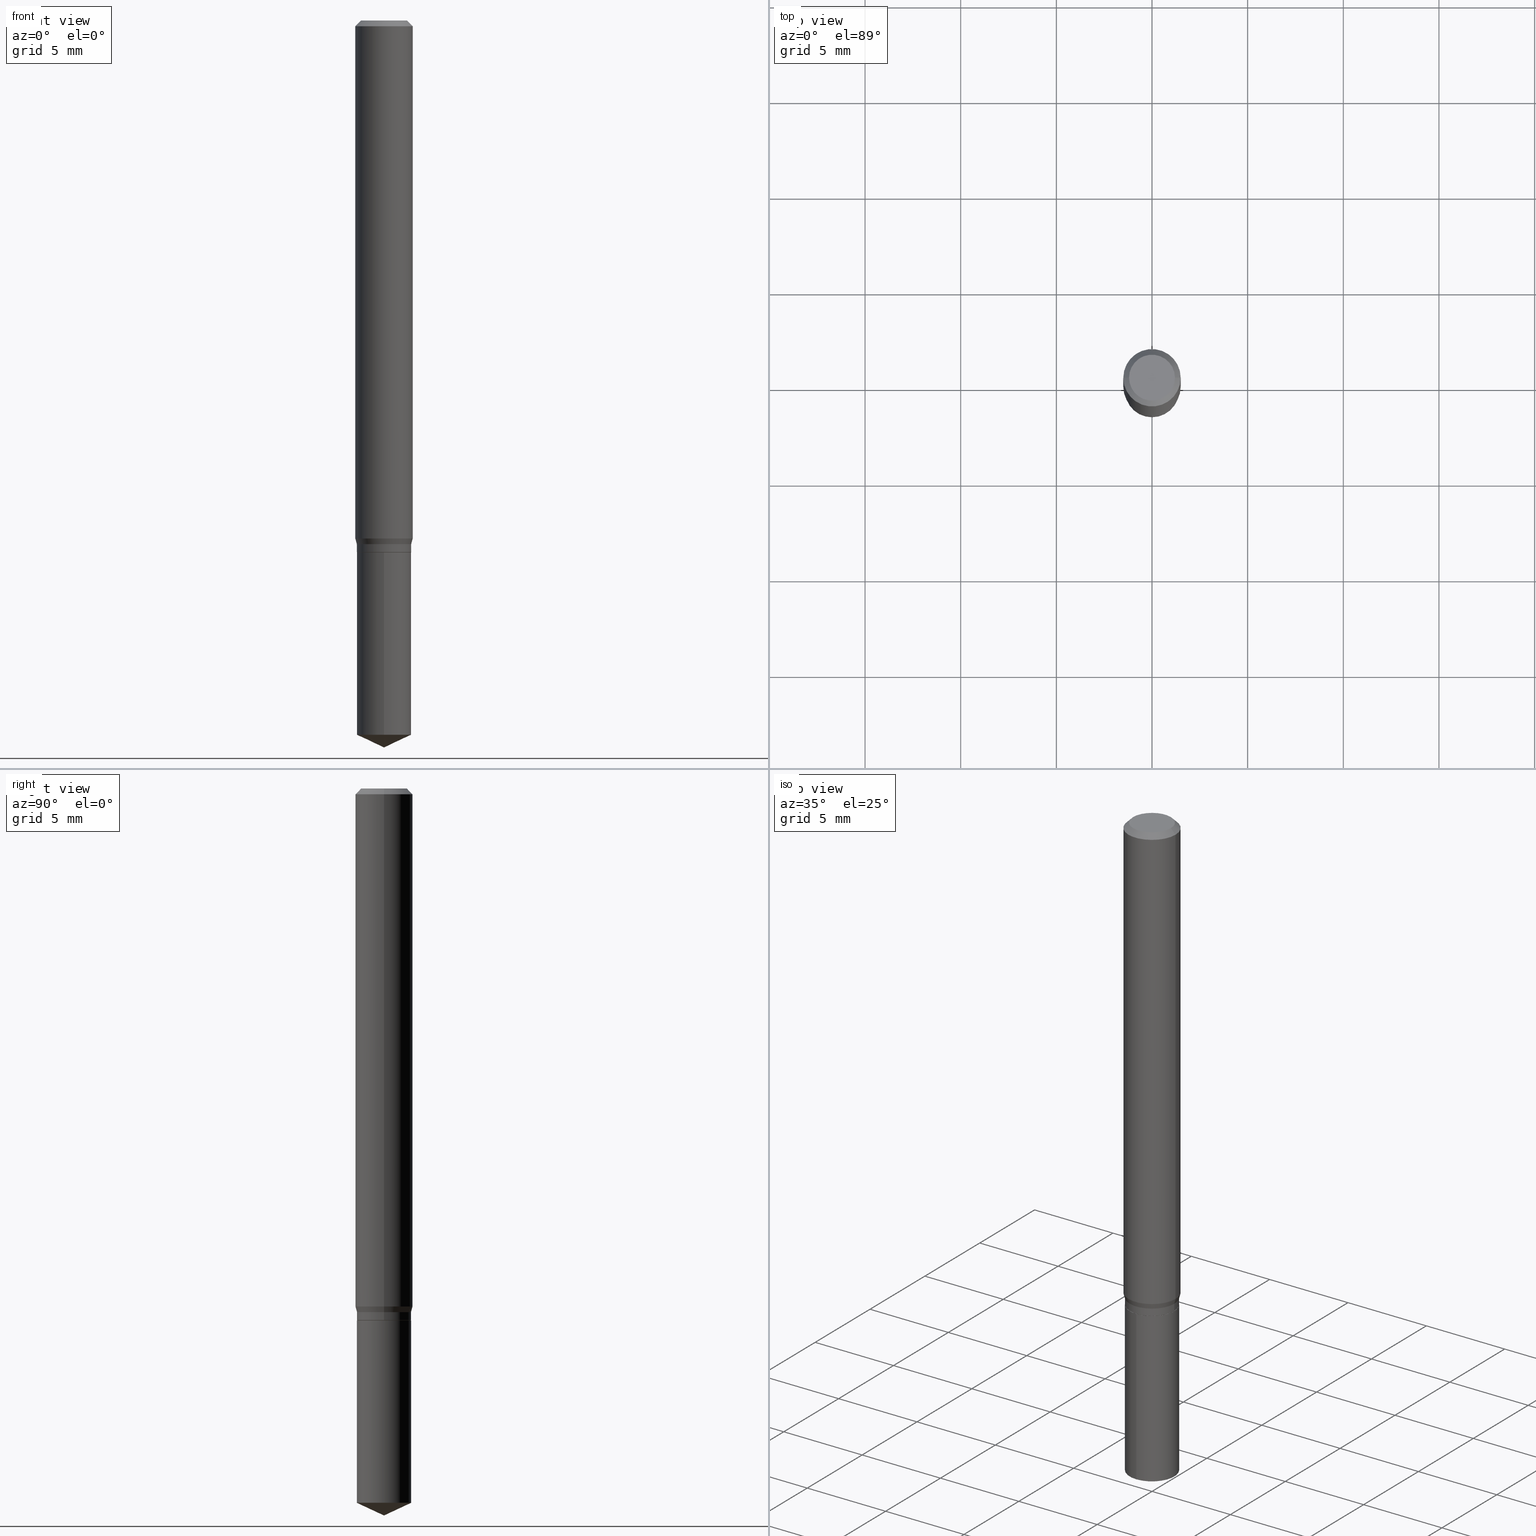
[diagram: canonical four-view strip — front | top / right | iso, engineering-drawing reading convention]
A machine part, canonical four-view strip (front | top / right | iso — engineering-drawing reading convention). The complete STEP part file that produces these views, byte-faithful:
ISO-10303-21;
HEADER;
FILE_DESCRIPTION (( 'STEP AP203' ),
    '1' );
FILE_NAME ('07701.STEP',
    '2024-04-24T01:19:08',
    ( '' ),
    ( '' ),
    'SwSTEP 2.0',
    'SolidWorks 2023',
    '' );
FILE_SCHEMA (( 'CONFIG_CONTROL_DESIGN' ));
ENDSEC;

DATA;
#1 = ORIENTED_EDGE ( 'NONE', *, *, #99, .T. ) ;
#2 = ORIENTED_EDGE ( 'NONE', *, *, #84, .T. ) ;
#3 = DIRECTION ( 'NONE',  ( -2.445468806185136597E-29, 3.491481338843145583E-15, 1.000000000000000000 ) ) ;
#4 = CC_DESIGN_PERSON_AND_ORGANIZATION_ASSIGNMENT ( #238, #209, ( #210 ) ) ;
#5 = CARTESIAN_POINT ( 'NONE',  ( 0.05539999999999999786, -4.208282457707642164E-15, -1.094500000000000028 ) ) ;
#6 = DIRECTION ( 'NONE',  ( 1.000000000000000000, -6.982962677686268288E-15, 0.000000000000000000 ) ) ;
#7 = DIRECTION ( 'NONE',  ( -2.445468806185136597E-29, 3.491481338843145583E-15, 1.000000000000000000 ) ) ;
#8 = AXIS2_PLACEMENT_3D ( 'NONE', #60, #61, #15 ) ;
#9 = CARTESIAN_POINT ( 'NONE',  ( -0.04724000000000000421, 3.504923541997677355E-16, -3.380025165670481712E-19 ) ) ;
#10 = CALENDAR_DATE ( 2024, 23, 4 ) ;
#11 = EDGE_CURVE ( 'NONE', #142, #184, #20, .T. ) ;
#12 = CARTESIAN_POINT ( 'NONE',  ( 7.921692473802966867E-30, -6.519989167480732289E-15, -1.094500000000000028 ) ) ;
#13 = DATE_AND_TIME ( #401, #234 ) ;
#14 = CARTESIAN_POINT ( 'NONE',  ( 2.606732898851746017E-29, -3.721723723757996266E-15, -1.065944039956157496 ) ) ;
#15 = DIRECTION ( 'NONE',  ( -1.000000000000000000, 6.982962677686266711E-15, 0.000000000000000000 ) ) ;
#16 = DATE_AND_TIME ( #56, #198 ) ;
#17 = APPROVAL ( #59, 'UNSPECIFIED' ) ;
#18 = ORIENTED_EDGE ( 'NONE', *, *, #300, .T. ) ;
#19 = VECTOR ( 'NONE', #252, 39.37007874015748854 ) ;
#20 = CIRCLE ( 'NONE', #73, 0.05589999999999999830 ) ;
#21 = CYLINDRICAL_SURFACE ( 'NONE', #396, 0.05589999999999999830 ) ;
#22 = EDGE_CURVE ( 'NONE', #369, #147, #307, .T. ) ;
#23 = DIRECTION ( 'NONE',  ( -6.328713451373378845E-15, -0.9063077870366499367, 0.4226182617406992748 ) ) ;
#24 = CARTESIAN_POINT ( 'NONE',  ( 2.888098660104664204E-31, -4.123439461173780263E-17, -0.01181000000000007218 ) ) ;
#25 = ORIENTED_EDGE ( 'NONE', *, *, #11, .T. ) ;
#26 = VECTOR ( 'NONE', #487, 39.37007874015748143 ) ;
#27 = APPROVAL_PERSON_ORGANIZATION ( #283, #17, #442 ) ;
#28 = EDGE_CURVE ( 'NONE', #485, #29, #135, .T. ) ;
#29 = VERTEX_POINT ( 'NONE', #110 ) ;
#30 = EDGE_LOOP ( 'NONE', ( #87, #374 ) ) ;
#31 = CC_DESIGN_PERSON_AND_ORGANIZATION_ASSIGNMENT ( #322, #438, ( #397 ) ) ;
#32 = CARTESIAN_POINT ( 'NONE',  ( 0.000000000000000000, 0.000000000000000000, 0.000000000000000000 ) ) ;
#33 = PERSON_AND_ORGANIZATION ( #45, #264 ) ;
#34 = EDGE_LOOP ( 'NONE', ( #200, #191, #37, #1 ) ) ;
#35 = AXIS2_PLACEMENT_3D ( 'NONE', #218, #410, #100 ) ;
#36 = CONICAL_SURFACE ( 'NONE', #371, 84.42940631927474726, 1.134464013796317783 ) ;
#37 = ORIENTED_EDGE ( 'NONE', *, *, #176, .T. ) ;
#38 = MANIFOLD_SOLID_BREP ( 'Body-Move/Copy2[1]', #423 ) ;
#39 =( NAMED_UNIT ( * ) PLANE_ANGLE_UNIT ( ) SI_UNIT ( $, .RADIAN. ) );
#40 = EDGE_LOOP ( 'NONE', ( #227, #97, #380 ) ) ;
#41 = ADVANCED_FACE ( 'NONE', ( #265 ), #419, .T. ) ;
#42 = DIRECTION ( 'NONE',  ( 1.000000000000000000, -6.982962677686268288E-15, 0.000000000000000000 ) ) ;
#43 = DATE_AND_TIME ( #82, #255 ) ;
#44 = FACE_OUTER_BOUND ( 'NONE', #379, .T. ) ;
#45 = PERSON ( 'UNSPECIFIED', 'UNSPECIFIED', 'UNSPECIFIED', ('UNSPECIFIED'), ('UNSPECIFIED'), ('UNSPECIFIED') ) ;
#46 = CARTESIAN_POINT ( 'NONE',  ( -0.05904999999999999832, 3.711095515056362547E-16, -0.01181000000000007218 ) ) ;
#47 = APPLICATION_PROTOCOL_DEFINITION ( 'international standard', 'config_control_design', 1994, #242 ) ;
#48 = CARTESIAN_POINT ( 'NONE',  ( -3.903476136826355269E-16, -0.05590000000000382857, -1.094499999999999806 ) ) ;
#49 = AXIS2_PLACEMENT_3D ( 'NONE', #195, #79, #165 ) ;
#50 = CARTESIAN_POINT ( 'NONE',  ( 2.635481732425721400E-29, -3.762769438871257887E-15, -1.077699999999999880 ) ) ;
#51 = EDGE_CURVE ( 'NONE', #156, #343, #213, .T. ) ;
#52 = LOCAL_TIME ( 21, 19, 8.000000000000000000, #439 ) ;
#53 = DIRECTION ( 'NONE',  ( 1.000000000000000000, -6.982962677686266711E-15, 4.876176775795935793E-29 ) ) ;
#54 = FACE_OUTER_BOUND ( 'NONE', #480, .T. ) ;
#55 = SECURITY_CLASSIFICATION_LEVEL ( 'unclassified' ) ;
#56 = CALENDAR_DATE ( 2024, 23, 4 ) ;
#57 = AXIS2_PLACEMENT_3D ( 'NONE', #349, #132, #6 ) ;
#58 = CARTESIAN_POINT ( 'NONE',  ( 2.676565608369632355E-29, -3.821426325363822773E-15, -1.094500000000000028 ) ) ;
#59 = APPROVAL_STATUS ( 'not_yet_approved' ) ;
#60 = CARTESIAN_POINT ( 'NONE',  ( 2.888098660104664204E-31, -4.123439461173780263E-17, -0.01181000000000007218 ) ) ;
#61 = DIRECTION ( 'NONE',  ( 2.445468806185136597E-29, -3.491481338843145583E-15, -1.000000000000000000 ) ) ;
#62 = VERTEX_POINT ( 'NONE', #9 ) ;
#63 = CARTESIAN_POINT ( 'NONE',  ( 0.000000000000000000, 0.000000000000000000, 0.000000000000000000 ) ) ;
#64 = ADVANCED_FACE ( 'NONE', ( #54 ), #90, .T. ) ;
#65 = VECTOR ( 'NONE', #282, 39.37007874015748143 ) ;
#66 = CONICAL_SURFACE ( 'NONE', #272, 0.05589999999999999830, 0.2617993877991506846 ) ;
#67 = CARTESIAN_POINT ( 'NONE',  ( 3.971933892899227145E-16, 0.05589999999999617497, -1.094500000000000028 ) ) ;
#68 = FACE_OUTER_BOUND ( 'NONE', #284, .T. ) ;
#69 = EDGE_LOOP ( 'NONE', ( #25, #453, #339, #216 ) ) ;
#70 = ORIENTED_EDGE ( 'NONE', *, *, #412, .F. ) ;
#71 = DIRECTION ( 'NONE',  ( -2.445468806185136597E-29, 3.491481338843145583E-15, 1.000000000000000000 ) ) ;
#72 = ORIENTED_EDGE ( 'NONE', *, *, #99, .F. ) ;
#73 = AXIS2_PLACEMENT_3D ( 'NONE', #108, #417, #74 ) ;
#74 = DIRECTION ( 'NONE',  ( 1.000000000000000000, -6.982962677686268288E-15, 0.000000000000000000 ) ) ;
#75 = EDGE_LOOP ( 'NONE', ( #476, #452, #189, #152 ) ) ;
#76 = ORIENTED_EDGE ( 'NONE', *, *, #390, .T. ) ;
#77 = ADVANCED_FACE ( 'NONE', ( #157 ), #399, .T. ) ;
#78 = AXIS2_PLACEMENT_3D ( 'NONE', #368, #95, #250 ) ;
#79 = DIRECTION ( 'NONE',  ( -2.445458899330790108E-29, 3.491495526022433205E-15, 1.000000000000000000 ) ) ;
#80 = DIRECTION ( 'NONE',  ( 1.000000000000000000, -6.982962677686266711E-15, 0.000000000000000000 ) ) ;
#81 = DIRECTION ( 'NONE',  ( -6.982962677686266711E-15, -1.000000000000000000, 2.443513411148715109E-15 ) ) ;
#82 = CALENDAR_DATE ( 2024, 23, 4 ) ;
#83 = DIRECTION ( 'NONE',  ( 1.000000000000000000, -6.982962677686266711E-15, 4.876176775795936353E-29 ) ) ;
#84 = EDGE_CURVE ( 'NONE', #142, #232, #199, .T. ) ;
#85 = DIRECTION ( 'NONE',  ( -2.445468806185136597E-29, 3.491481338843145583E-15, 1.000000000000000000 ) ) ;
#86 = DIRECTION ( 'NONE',  ( -6.982962677686267499E-15, -1.000000000000000000, 3.520397390770436909E-15 ) ) ;
#87 = ORIENTED_EDGE ( 'NONE', *, *, #151, .T. ) ;
#88 = CIRCLE ( 'NONE', #448, 0.05904999999999999832 ) ;
#89 = APPROVAL_PERSON_ORGANIZATION ( #460, #94, #388 ) ;
#90 = CYLINDRICAL_SURFACE ( 'NONE', #49, 0.05589999999999999830 ) ;
#91 = PERSON_AND_ORGANIZATION ( #45, #264 ) ;
#92 = LINE ( 'NONE', #46, #334 ) ;
#93 = PRODUCT_DEFINITION_SHAPE ( 'NONE', 'NONE',  #210 ) ;
#94 = APPROVAL ( #115, 'UNSPECIFIED' ) ;
#95 = DIRECTION ( 'NONE',  ( -2.445458899330790108E-29, 3.491495526022433205E-15, 1.000000000000000000 ) ) ;
#96 = AXIS2_PLACEMENT_3D ( 'NONE', #63, #408, #138 ) ;
#97 = ORIENTED_EDGE ( 'NONE', *, *, #329, .T. ) ;
#98 = CARTESIAN_POINT ( 'NONE',  ( 3.658672935554494692E-29, -5.223595400746700193E-15, -1.496099999999999985 ) ) ;
#99 = EDGE_CURVE ( 'NONE', #136, #147, #88, .T. ) ;
#100 = DIRECTION ( 'NONE',  ( 1.000000000000000000, -6.982962677686268288E-15, 0.000000000000000000 ) ) ;
#101 = CC_DESIGN_PERSON_AND_ORGANIZATION_ASSIGNMENT ( #364, #474, ( #296 ) ) ;
#102 = CIRCLE ( 'NONE', #78, 0.05589999999999999830 ) ;
#103 = CARTESIAN_POINT ( 'NONE',  ( 4.132873053354867254E-48, -5.900647395337818946E-34, -1.690012582823346072E-19 ) ) ;
#104 = ORIENTED_EDGE ( 'NONE', *, *, #468, .F. ) ;
#105 = CARTESIAN_POINT ( 'NONE',  ( -3.903476136826355269E-16, -0.05590000000000382857, -1.094499999999999806 ) ) ;
#106 = VERTEX_POINT ( 'NONE', #356 ) ;
#107 = VERTEX_POINT ( 'NONE', #348 ) ;
#108 = CARTESIAN_POINT ( 'NONE',  ( 2.675342873966538993E-29, -3.819680584694400481E-15, -1.093999999999999861 ) ) ;
#109 = CIRCLE ( 'NONE', #241, 0.04724000000000000421 ) ;
#110 = CARTESIAN_POINT ( 'NONE',  ( -0.05539999999999999786, -3.425136422578616035E-15, -1.094500000000000028 ) ) ;
#111 = LENGTH_MEASURE_WITH_UNIT ( LENGTH_MEASURE( 0.02539999999999999897 ), #153 );
#112 = ADVANCED_FACE ( 'NONE', ( #350 ), #233, .T. ) ;
#113 = ORIENTED_EDGE ( 'NONE', *, *, #441, .F. ) ;
#114 = CARTESIAN_POINT ( 'NONE',  ( -0.05904999999999999832, -1.461903573718526716E-15, -0.01181000000000007218 ) ) ;
#115 = APPROVAL_STATUS ( 'not_yet_approved' ) ;
#116 = CONICAL_SURFACE ( 'NONE', #187, 0.05539999999999999786, 0.7853981633972775267 ) ;
#117 = CARTESIAN_POINT ( 'NONE',  ( -0.05589999999999999830, 3.971933892898959918E-16, -2.749684715452492324E-30 ) ) ;
#118 = VECTOR ( 'NONE', #122, 39.37007874015748143 ) ;
#119 = DIRECTION ( 'NONE',  ( -6.982962677686266711E-15, -1.000000000000000000, 4.887026822297430217E-15 ) ) ;
#120 = APPROVAL_DATE_TIME ( #43, #94 ) ;
#121 = EDGE_CURVE ( 'NONE', #29, #485, #361, .T. ) ;
#122 = DIRECTION ( 'NONE',  ( -2.445468806185136877E-29, 3.491481338843145188E-15, 1.000000000000000000 ) ) ;
#123 = FACE_OUTER_BOUND ( 'NONE', #75, .T. ) ;
#124 = DIRECTION ( 'NONE',  ( -2.445458899330790108E-29, 3.491495526022433205E-15, 1.000000000000000000 ) ) ;
#125 = CARTESIAN_POINT ( 'NONE',  ( 2.676565608369632355E-29, -3.821426325363822773E-15, -1.094500000000000028 ) ) ;
#126 = APPROVAL_STATUS ( 'not_yet_approved' ) ;
#127 = AXIS2_PLACEMENT_3D ( 'NONE', #32, #246, #53 ) ;
#128 =( GEOMETRIC_REPRESENTATION_CONTEXT ( 3 ) GLOBAL_UNCERTAINTY_ASSIGNED_CONTEXT ( ( #280 ) ) GLOBAL_UNIT_ASSIGNED_CONTEXT ( ( #231, #39, #381 ) ) REPRESENTATION_CONTEXT ( 'NONE', 'WORKASPACE' ) );
#129 = CARTESIAN_POINT ( 'NONE',  ( 0.05904999999999999832, -4.535783407291118600E-16, -0.01181000000000007218 ) ) ;
#130 = COORDINATED_UNIVERSAL_TIME_OFFSET ( 5, 0, .BEHIND. ) ;
#131 = ADVANCED_FACE ( 'NONE', ( #310 ), #192, .F. ) ;
#132 = DIRECTION ( 'NONE',  ( -2.445468806185136597E-29, 3.491481338843145583E-15, 1.000000000000000000 ) ) ;
#133 = APPROVAL_DATE_TIME ( #16, #17 ) ;
#134 = CARTESIAN_POINT ( 'NONE',  ( 2.635481732425721400E-29, -3.762769438871257887E-15, -1.077699999999999880 ) ) ;
#135 = CIRCLE ( 'NONE', #352, 0.05539999999999999786 ) ;
#136 = VERTEX_POINT ( 'NONE', #114 ) ;
#137 = EDGE_CURVE ( 'NONE', #485, #142, #354, .T. ) ;
#138 = DIRECTION ( 'NONE',  ( 1.000000000000000000, -6.982962677686266711E-15, 4.876176775795935793E-29 ) ) ;
#139 = FACE_OUTER_BOUND ( 'NONE', #145, .T. ) ;
#140 = CARTESIAN_POINT ( 'NONE',  ( -9.261924752013118283E-28, 1.322368428517963298E-13, 37.87397874015748300 ) ) ;
#141 = ORIENTED_EDGE ( 'NONE', *, *, #28, .T. ) ;
#142 = VERTEX_POINT ( 'NONE', #319 ) ;
#143 = AXIS2_PLACEMENT_3D ( 'NONE', #58, #326, #239 ) ;
#144 = LINE ( 'NONE', #169, #178 ) ;
#145 = EDGE_LOOP ( 'NONE', ( #186, #484, #2, #182 ) ) ;
#146 = VERTEX_POINT ( 'NONE', #287 ) ;
#147 = VERTEX_POINT ( 'NONE', #129 ) ;
#148 = DIRECTION ( 'NONE',  ( -2.445468806185136597E-29, 3.491481338843145583E-15, 1.000000000000000000 ) ) ;
#149 = AXIS2_PLACEMENT_3D ( 'NONE', #103, #370, #447 ) ;
#150 = AXIS2_PLACEMENT_3D ( 'NONE', #312, #236, #461 ) ;
#151 = EDGE_CURVE ( 'NONE', #223, #106, #490, .T. ) ;
#152 = ORIENTED_EDGE ( 'NONE', *, *, #367, .F. ) ;
#153 =( LENGTH_UNIT ( ) NAMED_UNIT ( * ) SI_UNIT ( $, .METRE. ) );
#154 = DIRECTION ( 'NONE',  ( -2.445458899330790108E-29, 3.491495526022433205E-15, 1.000000000000000000 ) ) ;
#155 = PERSON_AND_ORGANIZATION_ROLE ( 'design_owner' ) ;
#156 = VERTEX_POINT ( 'NONE', #465 ) ;
#157 = FACE_OUTER_BOUND ( 'NONE', #386, .T. ) ;
#158 = EDGE_LOOP ( 'NONE', ( #141, #267, #219, #301 ) ) ;
#159 = AXIS2_PLACEMENT_3D ( 'NONE', #243, #154, #119 ) ;
#160 = DIRECTION ( 'NONE',  ( 1.000000000000000000, -6.982962677686268288E-15, 0.000000000000000000 ) ) ;
#161 = CONICAL_SURFACE ( 'NONE', #8, 0.05904999999999999832, 0.7853981633974452814 ) ;
#162 = DIRECTION ( 'NONE',  ( 1.000000000000000000, -6.982962677686268288E-15, 0.000000000000000000 ) ) ;
#163 = CARTESIAN_POINT ( 'NONE',  ( 2.676565608369632355E-29, -3.821426325363822773E-15, -1.094500000000000028 ) ) ;
#164 = EDGE_LOOP ( 'NONE', ( #385, #262, #181 ) ) ;
#165 = DIRECTION ( 'NONE',  ( -6.982962677686266711E-15, -1.000000000000000000, 2.443513411148715109E-15 ) ) ;
#166 = EDGE_CURVE ( 'NONE', #29, #184, #466, .T. ) ;
#167 = VECTOR ( 'NONE', #201, 39.37007874015748143 ) ;
#168 = CIRCLE ( 'NONE', #353, 0.05905000000000013016 ) ;
#169 = CARTESIAN_POINT ( 'NONE',  ( -0.05589999999999999830, -3.365576049581361846E-15, -1.077699999999999880 ) ) ;
#170 = CALENDAR_DATE ( 2024, 23, 4 ) ;
#171 = EDGE_CURVE ( 'NONE', #378, #136, #398, .T. ) ;
#172 = AXIS2_PLACEMENT_3D ( 'NONE', #14, #71, #333 ) ;
#173 = CARTESIAN_POINT ( 'NONE',  ( 0.05589999999999999830, -4.153117052553920284E-15, -1.077699999999999880 ) ) ;
#174 = CARTESIAN_POINT ( 'NONE',  ( 3.658651059288795076E-29, -5.223626456482161457E-15, -1.496099999999999985 ) ) ;
#175 = DIRECTION ( 'NONE',  ( -2.445458899330790108E-29, 3.491495526022433205E-15, 1.000000000000000000 ) ) ;
#176 = EDGE_CURVE ( 'NONE', #62, #136, #92, .T. ) ;
#177 = EDGE_LOOP ( 'NONE', ( #221, #411 ) ) ;
#178 = VECTOR ( 'NONE', #298, 39.37007874015748143 ) ;
#179 = ORIENTED_EDGE ( 'NONE', *, *, #256, .T. ) ;
#180 = LOCAL_TIME ( 21, 19, 8.000000000000000000, #395 ) ;
#181 = ORIENTED_EDGE ( 'NONE', *, *, #390, .F. ) ;
#182 = ORIENTED_EDGE ( 'NONE', *, *, #202, .F. ) ;
#183 = ADVANCED_FACE ( 'NONE', ( #123 ), #116, .T. ) ;
#184 = VERTEX_POINT ( 'NONE', #430 ) ;
#185 = FACE_OUTER_BOUND ( 'NONE', #40, .T. ) ;
#186 = ORIENTED_EDGE ( 'NONE', *, *, #437, .F. ) ;
#187 = AXIS2_PLACEMENT_3D ( 'NONE', #125, #7, #162 ) ;
#188 = CC_DESIGN_PERSON_AND_ORGANIZATION_ASSIGNMENT ( #91, #355, ( #296 ) ) ;
#189 = ORIENTED_EDGE ( 'NONE', *, *, #137, .T. ) ;
#190 = DIRECTION ( 'NONE',  ( 1.000000000000000000, 0.000000000000000000, 0.000000000000000000 ) ) ;
#191 = ORIENTED_EDGE ( 'NONE', *, *, #270, .F. ) ;
#192 = PLANE ( 'NONE',  #207 ) ;
#193 = CARTESIAN_POINT ( 'NONE',  ( 2.606732898851746017E-29, -3.721723723757996266E-15, -1.065944039956157496 ) ) ;
#194 = PLANE ( 'NONE',  #150 ) ;
#195 = CARTESIAN_POINT ( 'NONE',  ( 2.676565608369631794E-29, -3.821426325363822773E-15, -1.094499999999999806 ) ) ;
#196 = CARTESIAN_POINT ( 'NONE',  ( 0.05539999999999999786, -4.208282457707642164E-15, -1.094500000000000028 ) ) ;
#197 = CIRCLE ( 'NONE', #305, 0.05589999999999999830 ) ;
#198 = LOCAL_TIME ( 21, 19, 8.000000000000000000, #357 ) ;
#199 = LINE ( 'NONE', #387, #167 ) ;
#200 = ORIENTED_EDGE ( 'NONE', *, *, #22, .F. ) ;
#201 = DIRECTION ( 'NONE',  ( -2.445468806185136877E-29, 3.491481338843145188E-15, 1.000000000000000000 ) ) ;
#202 = EDGE_CURVE ( 'NONE', #260, #232, #197, .T. ) ;
#203 = APPLICATION_CONTEXT ( 'configuration controlled 3d designs of mechanical parts and assemblies' ) ;
#204 = FACE_OUTER_BOUND ( 'NONE', #434, .T. ) ;
#205 = APPROVAL_ROLE ( '' ) ;
#206 = DIRECTION ( 'NONE',  ( -2.445458899330790108E-29, 3.491495526022433599E-15, 1.000000000000000000 ) ) ;
#207 = AXIS2_PLACEMENT_3D ( 'NONE', #12, #313, #459 ) ;
#208 = CC_DESIGN_SECURITY_CLASSIFICATION ( #397, ( #296 ) ) ;
#209 = PERSON_AND_ORGANIZATION_ROLE ( 'creator' ) ;
#210 = PRODUCT_DEFINITION ( 'UNKNOWN', '', #296, #302 ) ;
#211 = FACE_OUTER_BOUND ( 'NONE', #34, .T. ) ;
#212 = LINE ( 'NONE', #67, #254 ) ;
#213 = CIRCLE ( 'NONE', #159, 0.05589999999999999830 ) ;
#214 = APPROVAL_PERSON_ORGANIZATION ( #327, #489, #205 ) ;
#215 = LINE ( 'NONE', #174, #376 ) ;
#216 = ORIENTED_EDGE ( 'NONE', *, *, #84, .F. ) ;
#217 = ADVANCED_FACE ( 'NONE', ( #204 ), #21, .T. ) ;
#218 = CARTESIAN_POINT ( 'NONE',  ( 2.635481732425721400E-29, -3.762769438871257887E-15, -1.077699999999999880 ) ) ;
#219 = ORIENTED_EDGE ( 'NONE', *, *, #11, .F. ) ;
#220 = DIRECTION ( 'NONE',  ( -2.445468806185136597E-29, 3.491481338843145583E-15, 1.000000000000000000 ) ) ;
#221 = ORIENTED_EDGE ( 'NONE', *, *, #270, .T. ) ;
#222 = CIRCLE ( 'NONE', #172, 0.05905000000000013016 ) ;
#223 = VERTEX_POINT ( 'NONE', #105 ) ;
#224 = AXIS2_PLACEMENT_3D ( 'NONE', #464, #429, #83 ) ;
#225 = EDGE_CURVE ( 'NONE', #146, #147, #259, .T. ) ;
#226 = CARTESIAN_POINT ( 'NONE',  ( 0.05904999999999999832, -4.463468013801466955E-16, -0.01181000000000007218 ) ) ;
#227 = ORIENTED_EDGE ( 'NONE', *, *, #309, .F. ) ;
#228 = ORIENTED_EDGE ( 'NONE', *, *, #479, .F. ) ;
#229 = ORIENTED_EDGE ( 'NONE', *, *, #151, .F. ) ;
#230 = ORIENTED_EDGE ( 'NONE', *, *, #244, .F. ) ;
#231 =( CONVERSION_BASED_UNIT ( 'INCH', #111 ) LENGTH_UNIT ( ) NAMED_UNIT ( #290 ) );
#232 = VERTEX_POINT ( 'NONE', #173 ) ;
#233 = CONICAL_SURFACE ( 'NONE', #407, 0.05589999999999999830, 0.2617993877991506846 ) ;
#234 = LOCAL_TIME ( 21, 19, 8.000000000000000000, #130 ) ;
#235 = CARTESIAN_POINT ( 'NONE',  ( 0.000000000000000000, 0.000000000000000000, 0.000000000000000000 ) ) ;
#236 = DIRECTION ( 'NONE',  ( 2.445458899330789267E-29, -3.491495526022433599E-15, -1.000000000000000000 ) ) ;
#237 = CARTESIAN_POINT ( 'NONE',  ( -0.05539999999999999786, -3.427785649752727631E-15, -1.094500000000000028 ) ) ;
#238 = PERSON_AND_ORGANIZATION ( #45, #264 ) ;
#239 = DIRECTION ( 'NONE',  ( 1.000000000000000000, -6.982962677686268288E-15, 0.000000000000000000 ) ) ;
#240 = DIRECTION ( 'NONE',  ( 1.000000000000000000, -6.982962677686268288E-15, 0.000000000000000000 ) ) ;
#241 = AXIS2_PLACEMENT_3D ( 'NONE', #413, #482, #330 ) ;
#242 = APPLICATION_CONTEXT ( 'configuration controlled 3d designs of mechanical parts and assemblies' ) ;
#243 = CARTESIAN_POINT ( 'NONE',  ( 3.594917108064294663E-29, -5.132599518001554122E-15, -1.470033401909135673 ) ) ;
#244 = EDGE_CURVE ( 'NONE', #369, #62, #109, .T. ) ;
#245 = SHAPE_DEFINITION_REPRESENTATION ( #93, #308 ) ;
#246 = DIRECTION ( 'NONE',  ( -2.445468806185136597E-29, 3.491481338843145583E-15, 1.000000000000000000 ) ) ;
#247 = LINE ( 'NONE', #117, #118 ) ;
#248 = AXIS2_PLACEMENT_3D ( 'NONE', #421, #431, #86 ) ;
#249 = DATE_AND_TIME ( #170, #52 ) ;
#250 = DIRECTION ( 'NONE',  ( -6.982962677686266711E-15, -1.000000000000000000, 4.887026822297430217E-15 ) ) ;
#251 = ORIENTED_EDGE ( 'NONE', *, *, #412, .T. ) ;
#252 = DIRECTION ( 'NONE',  ( 6.439704144417034297E-15, 0.9063077870366528233, 0.4226182617406930020 ) ) ;
#253 = DIRECTION ( 'NONE',  ( -6.982962677686266711E-15, -1.000000000000000000, 2.443513411148715109E-15 ) ) ;
#254 = VECTOR ( 'NONE', #292, 39.37007874015748143 ) ;
#255 = LOCAL_TIME ( 21, 19, 8.000000000000000000, #314 ) ;
#256 = EDGE_CURVE ( 'NONE', #378, #146, #222, .T. ) ;
#257 = DIRECTION ( 'NONE',  ( 2.445468806185136597E-29, -3.491481338843145583E-15, -1.000000000000000000 ) ) ;
#258 = ORIENTED_EDGE ( 'NONE', *, *, #176, .F. ) ;
#259 = LINE ( 'NONE', #375, #402 ) ;
#260 = VERTEX_POINT ( 'NONE', #477 ) ;
#261 = EDGE_CURVE ( 'NONE', #260, #378, #144, .T. ) ;
#262 = ORIENTED_EDGE ( 'NONE', *, *, #309, .T. ) ;
#263 = ORIENTED_EDGE ( 'NONE', *, *, #455, .F. ) ;
#264 = ORGANIZATION ( 'UNSPECIFIED', 'UNSPECIFIED', '' ) ;
#265 = FACE_OUTER_BOUND ( 'NONE', #69, .T. ) ;
#266 = ORIENTED_EDGE ( 'NONE', *, *, #479, .T. ) ;
#267 = ORIENTED_EDGE ( 'NONE', *, *, #166, .T. ) ;
#268 = DIRECTION ( 'NONE',  ( -6.982962677686266711E-15, -1.000000000000000000, 2.443513411148715109E-15 ) ) ;
#269 = CARTESIAN_POINT ( 'NONE',  ( 2.888098660104664204E-31, -4.123439461173780263E-17, -0.01181000000000007218 ) ) ;
#270 = EDGE_CURVE ( 'NONE', #62, #369, #462, .T. ) ;
#271 = CLOSED_SHELL ( 'NONE', ( #400, #281, #450, #112, #41, #294, #405, #77, #363, #318, #131, #183 ) ) ;
#272 = AXIS2_PLACEMENT_3D ( 'NONE', #134, #365, #160 ) ;
#273 = DIRECTION ( 'NONE',  ( -2.445468806185136597E-29, 3.491481338843145583E-15, 1.000000000000000000 ) ) ;
#274 = DIRECTION ( 'NONE',  ( -2.445468806185136597E-29, 3.491481338843145583E-15, 1.000000000000000000 ) ) ;
#275 = DIRECTION ( 'NONE',  ( -2.445468806185136597E-29, 3.491481338843145583E-15, 1.000000000000000000 ) ) ;
#276 = CARTESIAN_POINT ( 'NONE',  ( 2.888098660104664204E-31, -4.123439461173780263E-17, -0.01181000000000007218 ) ) ;
#277 = DIRECTION ( 'NONE',  ( -0.7071067811864267805, 7.493145998869918709E-15, 0.7071067811866682540 ) ) ;
#278 = DIRECTION ( 'NONE',  ( 1.000000000000000000, -6.982962677686265133E-15, 0.000000000000000000 ) ) ;
#279 = ORIENTED_EDGE ( 'NONE', *, *, #28, .F. ) ;
#280 = UNCERTAINTY_MEASURE_WITH_UNIT (LENGTH_MEASURE( 1.000000000000000082E-05 ), #231, 'distance_accuracy_value', 'NONE');
#281 = ADVANCED_FACE ( 'NONE', ( #68 ), #456, .T. ) ;
#282 = DIRECTION ( 'NONE',  ( -2.445468806185136877E-29, 3.491481338843145188E-15, 1.000000000000000000 ) ) ;
#283 = PERSON_AND_ORGANIZATION ( #45, #264 ) ;
#284 = EDGE_LOOP ( 'NONE', ( #230, #458, #428, #258 ) ) ;
#285 = AXIS2_PLACEMENT_3D ( 'NONE', #235, #321, #469 ) ;
#286 = CC_DESIGN_APPROVAL ( #17, ( #296 ) ) ;
#287 = CARTESIAN_POINT ( 'NONE',  ( 0.05905000000000013016, -4.134067669875371975E-15, -1.065944039956157496 ) ) ;
#288 = DATE_TIME_ROLE ( 'classification_date' ) ;
#289 = CARTESIAN_POINT ( 'NONE',  ( -0.05905000000000013016, -3.302148238291656773E-15, -1.065944039956157496 ) ) ;
#290 = DIMENSIONAL_EXPONENTS ( 1.000000000000000000, 0.000000000000000000, 0.000000000000000000, 0.000000000000000000, 0.000000000000000000, 0.000000000000000000, 0.000000000000000000 ) ;
#291 = LINE ( 'NONE', #440, #335 ) ;
#292 = DIRECTION ( 'NONE',  ( -2.445458899330790108E-29, 3.491495526022433599E-15, 1.000000000000000000 ) ) ;
#293 = FACE_OUTER_BOUND ( 'NONE', #177, .T. ) ;
#294 = ADVANCED_FACE ( 'NONE', ( #139 ), #331, .T. ) ;
#295 = DIRECTION ( 'NONE',  ( -2.445458899330790108E-29, 3.491495526022433205E-15, 1.000000000000000000 ) ) ;
#296 = PRODUCT_DEFINITION_FORMATION_WITH_SPECIFIED_SOURCE ( 'ANY', '', #323, .NOT_KNOWN. ) ;
#297 = ORIENTED_EDGE ( 'NONE', *, *, #256, .F. ) ;
#298 = DIRECTION ( 'NONE',  ( -0.2588190451025219607, 5.211531920934553408E-15, 0.9659258262890679791 ) ) ;
#299 = ORIENTED_EDGE ( 'NONE', *, *, #121, .F. ) ;
#300 = EDGE_CURVE ( 'NONE', #156, #106, #212, .T. ) ;
#301 = ORIENTED_EDGE ( 'NONE', *, *, #137, .F. ) ;
#302 = DESIGN_CONTEXT ( 'detailed design', #203, 'design' ) ;
#303 = VECTOR ( 'NONE', #277, 39.37007874015748143 ) ;
#304 = CARTESIAN_POINT ( 'NONE',  ( 2.676565608369632355E-29, -3.821426325363822773E-15, -1.094500000000000028 ) ) ;
#305 = AXIS2_PLACEMENT_3D ( 'NONE', #317, #85, #240 ) ;
#306 = AXIS2_PLACEMENT_3D ( 'NONE', #360, #124, #268 ) ;
#307 = LINE ( 'NONE', #226, #26 ) ;
#308 = ADVANCED_BREP_SHAPE_REPRESENTATION ( '07701', ( #38, #358, #409 ), #128 ) ;
#309 = EDGE_CURVE ( 'NONE', #107, #156, #445, .T. ) ;
#310 = FACE_OUTER_BOUND ( 'NONE', #420, .T. ) ;
#311 = APPLICATION_PROTOCOL_DEFINITION ( 'international standard', 'config_control_design', 1994, #203 ) ;
#312 = CARTESIAN_POINT ( 'NONE',  ( 2.676565608369631794E-29, -3.821426325363822773E-15, -1.094499999999999806 ) ) ;
#313 = DIRECTION ( 'NONE',  ( -2.438088387897960049E-29, 3.491481338843145188E-15, 1.000000000000000000 ) ) ;
#314 = COORDINATED_UNIVERSAL_TIME_OFFSET ( 5, 0, .BEHIND. ) ;
#315 = VECTOR ( 'NONE', #463, 39.37007874015748143 ) ;
#316 = CYLINDRICAL_SURFACE ( 'NONE', #224, 0.05905000000000006771 ) ;
#317 = CARTESIAN_POINT ( 'NONE',  ( 2.635481732425721400E-29, -3.762769438871257887E-15, -1.077699999999999880 ) ) ;
#318 = ADVANCED_FACE ( 'NONE', ( #293 ), #406, .F. ) ;
#319 = CARTESIAN_POINT ( 'NONE',  ( 0.05589999999999999830, -4.210028198377062878E-15, -1.093999999999999861 ) ) ;
#320 = DATE_AND_TIME ( #10, #180 ) ;
#321 = DIRECTION ( 'NONE',  ( -2.445468806185136597E-29, 3.491481338843145583E-15, 1.000000000000000000 ) ) ;
#322 = PERSON_AND_ORGANIZATION ( #45, #264 ) ;
#323 = PRODUCT ( '07701', '07701', '', ( #427 ) ) ;
#324 = CIRCLE ( 'NONE', #57, 0.05589999999999999830 ) ;
#325 = DIRECTION ( 'NONE',  ( 1.000000000000000000, -6.982962677686266711E-15, 4.876185090822587894E-29 ) ) ;
#326 = DIRECTION ( 'NONE',  ( -2.445468806185136597E-29, 3.491481338843145583E-15, 1.000000000000000000 ) ) ;
#327 = PERSON_AND_ORGANIZATION ( #45, #264 ) ;
#328 = CONICAL_SURFACE ( 'NONE', #143, 0.05539999999999999786, 0.7853981633972775267 ) ;
#329 = EDGE_CURVE ( 'NONE', #107, #343, #215, .T. ) ;
#330 = DIRECTION ( 'NONE',  ( 1.000000000000000000, -6.982962677686266711E-15, 4.876185090822587894E-29 ) ) ;
#331 = CYLINDRICAL_SURFACE ( 'NONE', #96, 0.05589999999999999830 ) ;
#332 = CC_DESIGN_DATE_AND_TIME_ASSIGNMENT ( #13, #288, ( #397 ) ) ;
#333 = DIRECTION ( 'NONE',  ( 1.000000000000000000, -6.982962677686265133E-15, 0.000000000000000000 ) ) ;
#334 = VECTOR ( 'NONE', #432, 39.37007874015748143 ) ;
#335 = VECTOR ( 'NONE', #443, 39.37007874015748143 ) ;
#336 = ORIENTED_EDGE ( 'NONE', *, *, #344, .T. ) ;
#337 = ORIENTED_EDGE ( 'NONE', *, *, #171, .T. ) ;
#338 = PRODUCT_RELATED_PRODUCT_CATEGORY ( 'detail', '', ( #323 ) ) ;
#339 = ORIENTED_EDGE ( 'NONE', *, *, #344, .F. ) ;
#340 = AXIS2_PLACEMENT_3D ( 'NONE', #372, #220, #325 ) ;
#341 = EDGE_LOOP ( 'NONE', ( #336, #444, #228, #70 ) ) ;
#342 = CONICAL_SURFACE ( 'NONE', #248, 84.42940631927474726, 1.134464013796317783 ) ;
#343 = VERTEX_POINT ( 'NONE', #373 ) ;
#344 = EDGE_CURVE ( 'NONE', #232, #260, #433, .T. ) ;
#345 = CC_DESIGN_DATE_AND_TIME_ASSIGNMENT ( #320, #366, ( #210 ) ) ;
#346 = DIRECTION ( 'NONE',  ( -2.445468806185136597E-29, 3.491481338843145583E-15, 1.000000000000000000 ) ) ;
#347 = ORIENTED_EDGE ( 'NONE', *, *, #225, .F. ) ;
#348 = CARTESIAN_POINT ( 'NONE',  ( 3.658651059288794515E-29, -5.223626456482161457E-15, -1.496099999999999985 ) ) ;
#349 = CARTESIAN_POINT ( 'NONE',  ( 2.675342873966538993E-29, -3.819680584694400481E-15, -1.093999999999999861 ) ) ;
#350 = FACE_OUTER_BOUND ( 'NONE', #341, .T. ) ;
#351 = ADVANCED_FACE ( 'NONE', ( #478 ), #36, .T. ) ;
#352 = AXIS2_PLACEMENT_3D ( 'NONE', #304, #148, #457 ) ;
#353 = AXIS2_PLACEMENT_3D ( 'NONE', #193, #275, #278 ) ;
#354 = LINE ( 'NONE', #5, #315 ) ;
#355 = PERSON_AND_ORGANIZATION_ROLE ( 'creator' ) ;
#356 = CARTESIAN_POINT ( 'NONE',  ( 3.971933892899319836E-16, 0.05589999999999617497, -1.094500000000000028 ) ) ;
#357 = COORDINATED_UNIVERSAL_TIME_OFFSET ( 5, 0, .BEHIND. ) ;
#358 = MANIFOLD_SOLID_BREP ( 'Body-Move/Copy2[2]', #271 ) ;
#359 = CARTESIAN_POINT ( 'NONE',  ( 2.676565608369631794E-29, -3.821426325363822773E-15, -1.094499999999999806 ) ) ;
#360 = CARTESIAN_POINT ( 'NONE',  ( 2.676565608369631794E-29, -3.821426325363822773E-15, -1.094499999999999806 ) ) ;
#361 = CIRCLE ( 'NONE', #415, 0.05539999999999999786 ) ;
#362 = CIRCLE ( 'NONE', #377, 0.05904999999999999832 ) ;
#363 = ADVANCED_FACE ( 'NONE', ( #211 ), #161, .T. ) ;
#364 = PERSON_AND_ORGANIZATION ( #45, #264 ) ;
#365 = DIRECTION ( 'NONE',  ( -2.445468806185136597E-29, 3.491481338843145583E-15, 1.000000000000000000 ) ) ;
#366 = DATE_TIME_ROLE ( 'creation_date' ) ;
#367 = EDGE_CURVE ( 'NONE', #184, #142, #324, .T. ) ;
#368 = CARTESIAN_POINT ( 'NONE',  ( 3.594917108064294663E-29, -5.132599518001554122E-15, -1.470033401909135673 ) ) ;
#369 = VERTEX_POINT ( 'NONE', #475 ) ;
#370 = DIRECTION ( 'NONE',  ( 2.438088387897960049E-29, -3.491481338843145188E-15, -1.000000000000000000 ) ) ;
#371 = AXIS2_PLACEMENT_3D ( 'NONE', #140, #295, #449 ) ;
#372 = CARTESIAN_POINT ( 'NONE',  ( 8.265746106709734507E-48, -1.180129479067563789E-33, -3.380025165646692144E-19 ) ) ;
#373 = CARTESIAN_POINT ( 'NONE',  ( -3.903476136826264057E-16, -0.05590000000000514696, -1.470033401909135451 ) ) ;
#374 = ORIENTED_EDGE ( 'NONE', *, *, #468, .T. ) ;
#375 = CARTESIAN_POINT ( 'NONE',  ( 0.05905000000000006771, -4.123439461173745257E-16, 2.879382386107503723E-30 ) ) ;
#376 = VECTOR ( 'NONE', #23, 39.37007874015748854 ) ;
#377 = AXIS2_PLACEMENT_3D ( 'NONE', #276, #273, #80 ) ;
#378 = VERTEX_POINT ( 'NONE', #289 ) ;
#379 = EDGE_LOOP ( 'NONE', ( #471, #454, #251, #297 ) ) ;
#380 = ORIENTED_EDGE ( 'NONE', *, *, #51, .F. ) ;
#381 =( NAMED_UNIT ( * ) SI_UNIT ( $, .STERADIAN. ) SOLID_ANGLE_UNIT ( ) );
#382 = EDGE_LOOP ( 'NONE', ( #266, #337, #113, #347 ) ) ;
#383 = ORIENTED_EDGE ( 'NONE', *, *, #171, .F. ) ;
#384 = CC_DESIGN_PERSON_AND_ORGANIZATION_ASSIGNMENT ( #33, #155, ( #323 ) ) ;
#385 = ORIENTED_EDGE ( 'NONE', *, *, #329, .F. ) ;
#386 = EDGE_LOOP ( 'NONE', ( #383, #179, #446, #72 ) ) ;
#387 = CARTESIAN_POINT ( 'NONE',  ( 0.05589999999999999830, -3.903476136826622989E-16, 2.725782817669928091E-30 ) ) ;
#388 = APPROVAL_ROLE ( '' ) ;
#389 = FACE_OUTER_BOUND ( 'NONE', #382, .T. ) ;
#390 = EDGE_CURVE ( 'NONE', #343, #156, #102, .T. ) ;
#391 = CARTESIAN_POINT ( 'NONE',  ( -0.05905000000000006771, 4.195754854663396409E-16, -2.904631170795525045E-30 ) ) ;
#392 = CARTESIAN_POINT ( 'NONE',  ( 0.000000000000000000, 0.000000000000000000, 0.000000000000000000 ) ) ;
#393 = LINE ( 'NONE', #48, #403 ) ;
#394 = DIRECTION ( 'NONE',  ( 1.000000000000000000, -6.982962677686266711E-15, 0.000000000000000000 ) ) ;
#395 = COORDINATED_UNIVERSAL_TIME_OFFSET ( 5, 0, .BEHIND. ) ;
#396 = AXIS2_PLACEMENT_3D ( 'NONE', #359, #175, #253 ) ;
#397 = SECURITY_CLASSIFICATION ( '', '', #55 ) ;
#398 = LINE ( 'NONE', #391, #65 ) ;
#399 = CYLINDRICAL_SURFACE ( 'NONE', #285, 0.05905000000000006771 ) ;
#400 = ADVANCED_FACE ( 'NONE', ( #404 ), #328, .T. ) ;
#401 = CALENDAR_DATE ( 2024, 23, 4 ) ;
#402 = VECTOR ( 'NONE', #451, 39.37007874015748143 ) ;
#403 = VECTOR ( 'NONE', #206, 39.37007874015748143 ) ;
#404 = FACE_OUTER_BOUND ( 'NONE', #158, .T. ) ;
#405 = ADVANCED_FACE ( 'NONE', ( #44 ), #66, .T. ) ;
#406 = PLANE ( 'NONE',  #149 ) ;
#407 = AXIS2_PLACEMENT_3D ( 'NONE', #50, #346, #42 ) ;
#408 = DIRECTION ( 'NONE',  ( -2.445468806185136597E-29, 3.491481338843145583E-15, 1.000000000000000000 ) ) ;
#409 = AXIS2_PLACEMENT_3D ( 'NONE', #392, #488, #190 ) ;
#410 = DIRECTION ( 'NONE',  ( -2.445468806185136597E-29, 3.491481338843145583E-15, 1.000000000000000000 ) ) ;
#411 = ORIENTED_EDGE ( 'NONE', *, *, #244, .T. ) ;
#412 = EDGE_CURVE ( 'NONE', #232, #146, #291, .T. ) ;
#413 = CARTESIAN_POINT ( 'NONE',  ( 8.265746106709734507E-48, -1.180129479067563789E-33, -3.380025165646692144E-19 ) ) ;
#414 = ORIENTED_EDGE ( 'NONE', *, *, #300, .F. ) ;
#415 = AXIS2_PLACEMENT_3D ( 'NONE', #163, #3, #424 ) ;
#416 = CC_DESIGN_APPROVAL ( #94, ( #210 ) ) ;
#417 = DIRECTION ( 'NONE',  ( -2.445468806185136597E-29, 3.491481338843145583E-15, 1.000000000000000000 ) ) ;
#418 = ADVANCED_FACE ( 'NONE', ( #473 ), #194, .F. ) ;
#419 = CYLINDRICAL_SURFACE ( 'NONE', #127, 0.05589999999999999830 ) ;
#420 = EDGE_LOOP ( 'NONE', ( #279, #299 ) ) ;
#421 = CARTESIAN_POINT ( 'NONE',  ( -9.261924752013118283E-28, 1.322368428517963298E-13, 37.87397874015748300 ) ) ;
#422 = ORIENTED_EDGE ( 'NONE', *, *, #51, .T. ) ;
#423 = CLOSED_SHELL ( 'NONE', ( #64, #351, #486, #217, #418 ) ) ;
#424 = DIRECTION ( 'NONE',  ( 1.000000000000000000, -6.982962677686268288E-15, 0.000000000000000000 ) ) ;
#425 = CC_DESIGN_APPROVAL ( #489, ( #397 ) ) ;
#426 = CARTESIAN_POINT ( 'NONE',  ( 2.676565608369631794E-29, -3.821426325363822773E-15, -1.094499999999999806 ) ) ;
#427 = MECHANICAL_CONTEXT ( 'NONE', #242, 'mechanical' ) ;
#428 = ORIENTED_EDGE ( 'NONE', *, *, #441, .T. ) ;
#429 = DIRECTION ( 'NONE',  ( -2.445468806185136597E-29, 3.491481338843145583E-15, 1.000000000000000000 ) ) ;
#430 = CARTESIAN_POINT ( 'NONE',  ( -0.05589999999999999830, -3.394031622492933143E-15, -1.093999999999999861 ) ) ;
#431 = DIRECTION ( 'NONE',  ( -2.445458899330790108E-29, 3.491495526022433205E-15, 1.000000000000000000 ) ) ;
#432 = DIRECTION ( 'NONE',  ( -0.7071067811865453523, 2.468850131082234184E-15, -0.7071067811865496822 ) ) ;
#433 = CIRCLE ( 'NONE', #35, 0.05589999999999999830 ) ;
#434 = EDGE_LOOP ( 'NONE', ( #414, #422, #483, #104 ) ) ;
#435 = CIRCLE ( 'NONE', #306, 0.05589999999999999830 ) ;
#436 = DIRECTION ( 'NONE',  ( -2.445458899330790108E-29, 3.491495526022433205E-15, 1.000000000000000000 ) ) ;
#437 = EDGE_CURVE ( 'NONE', #184, #260, #247, .T. ) ;
#438 = PERSON_AND_ORGANIZATION_ROLE ( 'classification_officer' ) ;
#439 = COORDINATED_UNIVERSAL_TIME_OFFSET ( 5, 0, .BEHIND. ) ;
#440 = CARTESIAN_POINT ( 'NONE',  ( 0.05589999999999999830, -4.153117052553920284E-15, -1.077699999999999880 ) ) ;
#441 = EDGE_CURVE ( 'NONE', #147, #136, #362, .T. ) ;
#442 = APPROVAL_ROLE ( '' ) ;
#443 = DIRECTION ( 'NONE',  ( 0.2588190451025219607, 1.565188264969617432E-15, 0.9659258262890679791 ) ) ;
#444 = ORIENTED_EDGE ( 'NONE', *, *, #261, .T. ) ;
#445 = LINE ( 'NONE', #98, #19 ) ;
#446 = ORIENTED_EDGE ( 'NONE', *, *, #225, .T. ) ;
#447 = DIRECTION ( 'NONE',  ( -1.000000000000000000, 6.982962677686265922E-15, -4.876176775795935793E-29 ) ) ;
#448 = AXIS2_PLACEMENT_3D ( 'NONE', #269, #274, #394 ) ;
#449 = DIRECTION ( 'NONE',  ( -6.982962677686267499E-15, -1.000000000000000000, 3.520397390770436909E-15 ) ) ;
#450 = ADVANCED_FACE ( 'NONE', ( #389 ), #316, .T. ) ;
#451 = DIRECTION ( 'NONE',  ( -2.445468806185136877E-29, 3.491481338843145188E-15, 1.000000000000000000 ) ) ;
#452 = ORIENTED_EDGE ( 'NONE', *, *, #121, .T. ) ;
#453 = ORIENTED_EDGE ( 'NONE', *, *, #437, .T. ) ;
#454 = ORIENTED_EDGE ( 'NONE', *, *, #202, .T. ) ;
#455 = EDGE_CURVE ( 'NONE', #343, #223, #393, .T. ) ;
#456 = CONICAL_SURFACE ( 'NONE', #470, 0.05904999999999999832, 0.7853981633974452814 ) ;
#457 = DIRECTION ( 'NONE',  ( 1.000000000000000000, -6.982962677686268288E-15, 0.000000000000000000 ) ) ;
#458 = ORIENTED_EDGE ( 'NONE', *, *, #22, .T. ) ;
#459 = DIRECTION ( 'NONE',  ( 1.000000000000000000, -6.982962677686265922E-15, 4.876176775795935793E-29 ) ) ;
#460 = PERSON_AND_ORGANIZATION ( #45, #264 ) ;
#461 = DIRECTION ( 'NONE',  ( 6.982962677686265922E-15, 1.000000000000000000, -3.491495526022433599E-15 ) ) ;
#462 = CIRCLE ( 'NONE', #340, 0.04724000000000000421 ) ;
#463 = DIRECTION ( 'NONE',  ( 0.7071067811864267805, -2.468850131080992517E-15, 0.7071067811866682540 ) ) ;
#464 = CARTESIAN_POINT ( 'NONE',  ( 0.000000000000000000, 0.000000000000000000, 0.000000000000000000 ) ) ;
#465 = CARTESIAN_POINT ( 'NONE',  ( 3.971933892899320329E-16, 0.05589999999999487740, -1.470033401909136117 ) ) ;
#466 = LINE ( 'NONE', #237, #303 ) ;
#467 = APPROVAL_DATE_TIME ( #249, #489 ) ;
#468 = EDGE_CURVE ( 'NONE', #106, #223, #435, .T. ) ;
#469 = DIRECTION ( 'NONE',  ( 1.000000000000000000, -6.982962677686266711E-15, 4.876176775795936353E-29 ) ) ;
#470 = AXIS2_PLACEMENT_3D ( 'NONE', #24, #257, #472 ) ;
#471 = ORIENTED_EDGE ( 'NONE', *, *, #261, .F. ) ;
#472 = DIRECTION ( 'NONE',  ( -1.000000000000000000, 6.982962677686266711E-15, 0.000000000000000000 ) ) ;
#473 = FACE_OUTER_BOUND ( 'NONE', #30, .T. ) ;
#474 = PERSON_AND_ORGANIZATION_ROLE ( 'design_supplier' ) ;
#475 = CARTESIAN_POINT ( 'NONE',  ( 0.04724000000000000421, -3.852183633974369345E-16, -3.380025165621689721E-19 ) ) ;
#476 = ORIENTED_EDGE ( 'NONE', *, *, #166, .F. ) ;
#477 = CARTESIAN_POINT ( 'NONE',  ( -0.05589999999999999830, -3.394031622492933143E-15, -1.077699999999999880 ) ) ;
#478 = FACE_OUTER_BOUND ( 'NONE', #164, .T. ) ;
#479 = EDGE_CURVE ( 'NONE', #146, #378, #168, .T. ) ;
#480 = EDGE_LOOP ( 'NONE', ( #76, #18, #229, #263 ) ) ;
#481 = AXIS2_PLACEMENT_3D ( 'NONE', #426, #436, #81 ) ;
#482 = DIRECTION ( 'NONE',  ( -2.445468806185136597E-29, 3.491481338843145583E-15, 1.000000000000000000 ) ) ;
#483 = ORIENTED_EDGE ( 'NONE', *, *, #455, .T. ) ;
#484 = ORIENTED_EDGE ( 'NONE', *, *, #367, .T. ) ;
#485 = VERTEX_POINT ( 'NONE', #196 ) ;
#486 = ADVANCED_FACE ( 'NONE', ( #185 ), #342, .T. ) ;
#487 = DIRECTION ( 'NONE',  ( 0.7071067811865453523, -7.319954787623248157E-15, -0.7071067811865496822 ) ) ;
#488 = DIRECTION ( 'NONE',  ( 0.000000000000000000, 0.000000000000000000, 1.000000000000000000 ) ) ;
#489 = APPROVAL ( #126, 'UNSPECIFIED' ) ;
#490 = CIRCLE ( 'NONE', #481, 0.05589999999999999830 ) ;
ENDSEC;
END-ISO-10303-21;
